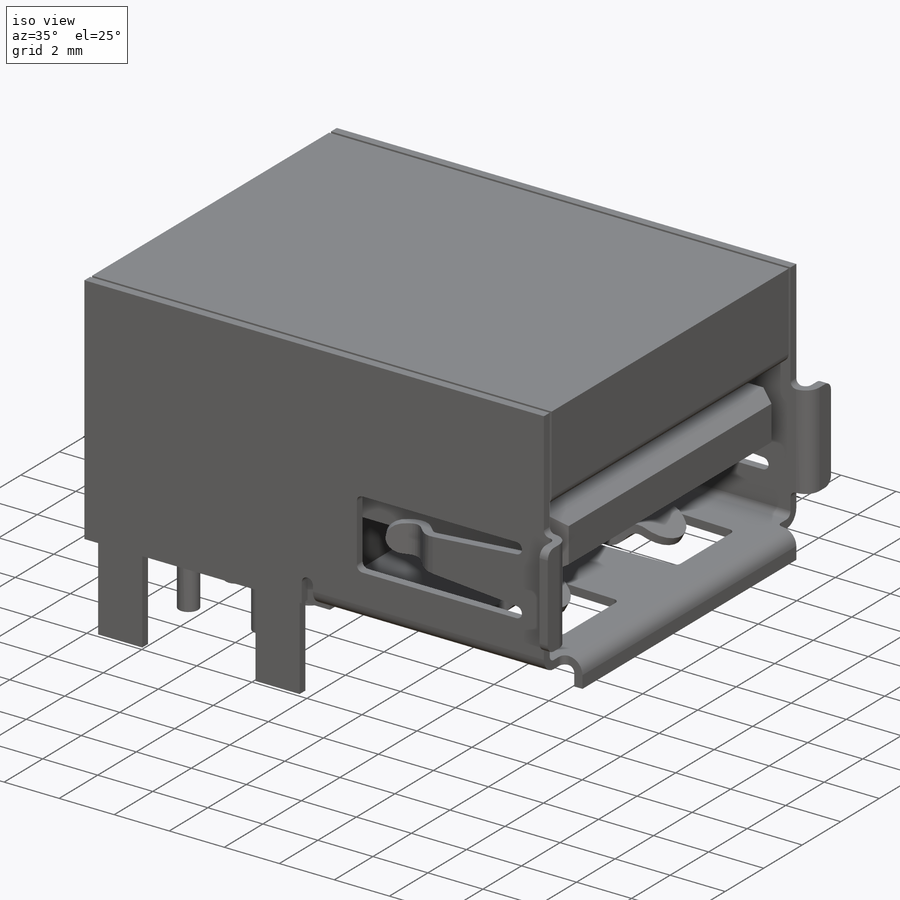
[diagram: iso view]
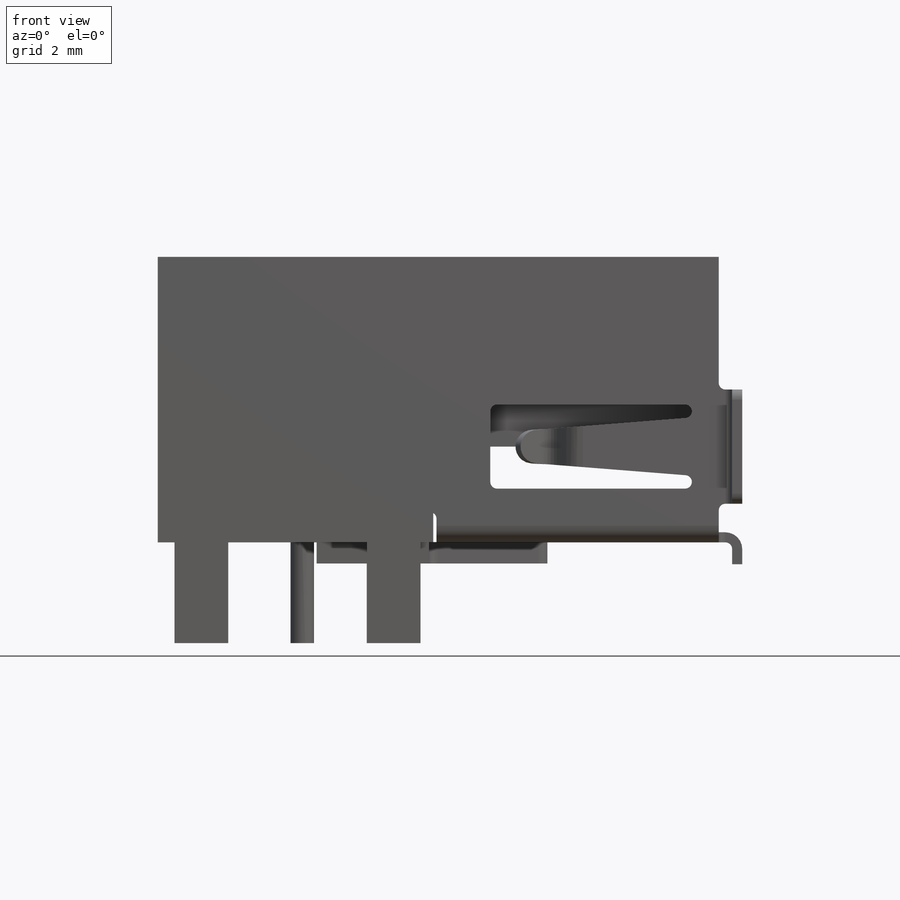
[diagram: front view]
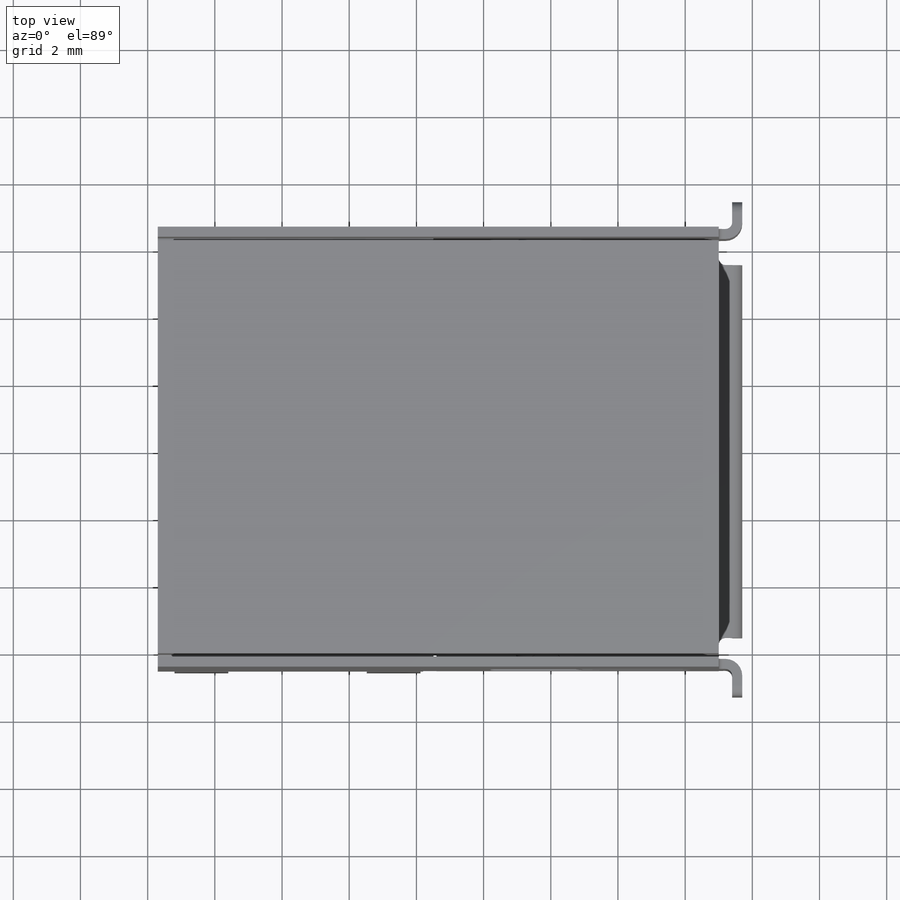
[diagram: top view]
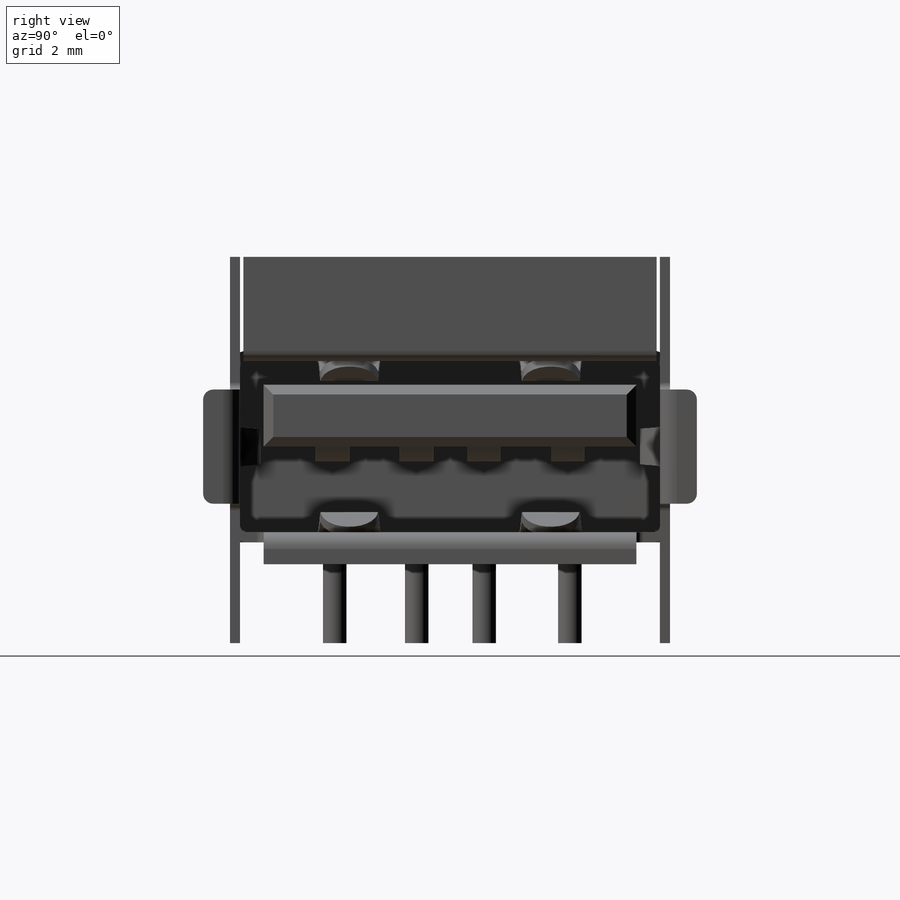
[diagram: right view]
SOLIDWORKS PART (.sldprt)
format: sldprt  version: not decoded by parser v0  size: 2,226,688 bytes
history: native  units: mm
features: sketch x27, extrude x11, cut_extrude x10, plane x5, fillet x5, mirror x4, material x1, shell x1, boolean_combine x1, chamfer x1, sweep x1, pattern_linear x1 + 5 further entries (+10 scaffold rows collapsed)
feature tree (83):
  scaffold x10  (default folders/planes/origin — collapsed)
  material  "Material <not specified>"
  plane  "Спереди"
  plane  "Сверху"
  plane  "Справа"
  sketch  "Эскиз1"  dims[D1=13.1mm D2=13.7mm]
  extrude  "Вытянуть1"  Depth=6.3mm
  plane  "Плоскость1"  Offset=3.2mm
  sketch  "Эскиз3"  dims[D5=0.8mm D6=0.5mm D1=10.5mm D2=7.9mm D3=9.5mm D4=6.8mm D7=0.3mm]
  "Поверхность-Вытянуть1"
  sketch  "Эскиз4"  dims[c1.D1=1.0mm c1.D5=0.15mm c1.D2=5.7mm c1.D3=4.6mm c1.D4=1.0mm c2.D5=0.3mm c2.D3=3.2mm]
  mirror  "Зеркальное отражение9"
  mirror  "Придать толщину2"
  cut_extrude  "Вырез-Вытянуть2"  [1 undecoded]
  sketch  "Эскиз4<2>"  dims[D1=20.0mm]
  sketch  "Эскиз8"  dims[D1=14.7mm D2=7.0mm]
  extrude  "Вытянуть2"  Depth=0.3mm
  fillet  "Скругление11"  Radius=0.5mm
  fillet  "Скругление13"  Radius=0.2mm
  shell  "Оболочка5"  Thickness=0.3mm
  sketch  "Эскиз19"  dims[D1=0.2mm D2=2.5mm D3=6.0mm D4=4.5mm]
  cut_extrude  "Вырез-Вытянуть8"  Depth=20mm
  sketch  "Эскиз20"  dims[c1.D6=0.2mm c1.D1=3.0mm c1.D2=~8.189557mm c2.D2=2.0deg c3.D2=~6.30917mm c4.D2=4.0deg c4.D3=1.5mm c4.D4=6.5mm c4.D5=3.0mm]
  cut_extrude  "Вырез-Вытянуть9"  [1 undecoded]
  sketch  "Эскиз21"  dims[c1.D2=1.7mm c1.D1=~5.50623mm c2.D1=12.0deg]
  sketch  "Эскиз24"  dims[c1.D2=~1.200263mm c1.D3=0.4mm c1.D4=0.7mm c1.D10=0.5mm c2.D2=11.7mm c3.D2=3.0deg c3.D5=12.5mm c3.D6=0.3mm c3.D7=~0.543551mm c4.D7=20.0deg c4.D8=~3.155494mm c5.D8=45.0deg c5.D9=3.5mm c5.D1=3.38mm c5.D2=0.4mm c6.D1=0.85mm c6.D5=0.2mm c7.D1=0.2mm c8.D1=10.0mm]
  extrude  "Поверхность-Отсечь2"  [1 undecoded]
  mirror  "Придать толщину3"
  plane  "Плоскость2"
  sketch  "Эскиз25"  dims[c1.D1=1.0mm c1.D2=6.1mm c1.D3=7.0mm c2.D3=~94.519785deg c3.D3=5.8mm]
  sketch  "Эскиз26"  dims[c1.D2=~1.200263mm c1.D3=0.4mm c1.D4=0.7mm c1.D10=0.5mm c1.D5=0.7mm c1.D6=0.4mm c1.D9=0.7mm c2.D2=11.7mm c3.D2=3.0deg c3.D5=12.5mm c3.D6=0.3mm c3.D7=~0.543551mm c4.D7=20.0deg c4.D8=~3.155494mm c5.D8=45.0deg c5.D9=3.5mm c5.D1=3.38mm c5.D2=0.5mm c6.D1=0.85mm c6.D5=0.3mm c6.D7=0.4mm c6.D9=~0.675736mm c7.D9=135.0deg c8.D9=~0.675736mm c9.D9=45.0deg c9.D10=5.8mm c9.D5=~0.729361mm c10.D5=45.0deg c10.D2=0.2mm c10.D1=0.2mm c11.D1=5.0mm]
  extrude  "Поверхность-Отсечь3"  [1 undecoded]
  mirror  "Придать толщину4"
  "Зеркальное отражение15"
  "Зеркальное отражение16"
  "Зеркальное отражение17"
  boolean_combine  "Соединить2"
  sketch  "Эскиз5"  dims[D2=4.6mm D1=0.0mm]
  cut_extrude  "Вырез-Вытянуть4"  Depth=1.5mm
  sketch  "Эскиз9"  dims[c1.D1=11.1mm c1.D2=1.8mm c2.D1=1.8mm c2.D2=1.8mm]
  cut_extrude  "Вырез-Вытянуть5"  Depth=0.7mm
  fillet  "Скругление9"  Radius=0.2mm
  sketch  "Эскиз10"  dims[D1=0.1mm]
  extrude  "Вытянуть3"  Depth=0.1mm
  sketch  "Эскиз11"  dims[c1.D1=1.0mm c1.D2=1.0mm c1.D3=3.5mm c1.D4=4.37mm c2.D1=3.45mm c2.D5=1.2mm c2.D6=1.2mm c2.D7=0.5mm c2.D8=11.1mm c2.D9=1.84mm]
  extrude  "Вытянуть4"  [1 undecoded]
  chamfer  "Фаска1"  Distance=0.5mm Angle=30deg
  sketch  "Эскиз12"  dims[D1=0.0mm]
  cut_extrude  "Вырез-Вытянуть6"  Depth=1.3mm
  sketch  "Эскиз13"
  cut_extrude  "Вырез-Вытянуть7"  Depth=1.4mm
  sketch  "Эскиз14"  dims[D1=12.5mm D2=1.0mm D3=0.3mm]
  sketch  "Эскиз16"  dims[c1.D2=~1.200263mm c1.D3=1.0mm c1.D4=1.0mm c1.D10=0.5mm c2.D2=11.7mm c3.D2=3.0deg c3.D5=12.5mm c3.D6=0.3mm c3.D7=~0.543551mm c4.D7=45.0deg c4.D8=~3.155494mm c5.D8=30.0deg c5.D9=3.5mm c5.D1=0.2mm]
  sweep  "По траектории1"
  pattern_linear  "Линейный массив2"  Count1=2 Count2=1 Spacing1=2.5mm Spacing2=50mm
  "Зеркальное отражение10"
  sketch  "Esboço1"
  cut_extrude  "Corte-extrusão1"  Depth=2mm
  sketch  "Esboço2"  dims[D1=0.0mm]
  cut_extrude  "Corte-extrusão2"  Depth=22mm
  sketch  "Esboço3"  dims[D1=0.5mm]
  extrude  "Ressalto-extrusão1"  Depth=3.7mm
  sketch  "Esboço4"
  cut_extrude  "Corte-extrusão3"  Depth=8.5mm
  sketch  "Esboço5"  dims[D1=2.8mm D2=2.8mm]
  extrude  "Ressalto-extrusão2"  [1 undecoded]
  fillet  "Filete1"  Radius=0.3mm
  fillet  "Filete2"  Radius=0.3mm
  sketch  "Esboço6"  dims[c1.D3=0.3mm c1.D1=4.73mm c1.D2=3.34mm c2.D3=1.2mm c2.D4=1.2mm c2.D5=6.87mm c2.D6=7.5mm c2.D7=3.75mm]
  extrude  "Ressalto-extrusão3"  Depth=0.63mm
  sketch  "Esboço7"
  extrude  "Ressalto-extrusão6"  Depth=0.2mm
  sketch  "Esboço8"  dims[c1.D9=~0.038179mm c1.D10=0.02mm c1.D12=0.7mm c1.D13=0.02mm c1.D14=0.02mm c1.D15=0.7mm c1.D16=0.7mm c1.D17=~0.609277mm c1.D18=~0.829551mm c1.D19=0.7mm c1.D20=0.7mm c1.D21=0.7mm c1.D22=0.7mm c1.D1=1.6mm c1.D2=1.6mm c1.D3=0.5mm c1.D4=0.5mm c1.D5=1.6mm c1.D6=1.6mm c1.D7=5.72mm c1.D8=5.72mm c2.D9=0.28mm c2.D11=0.8mm c2.D13=3.1mm c2.D14=0.3mm c2.D15=2.7mm c2.D16=2.44mm c2.D17=2.01mm c2.D18=2.55mm c2.D19=2.44mm c2.D20=2.01mm c2.D21=2.55mm c2.D22=3.1mm]
  extrude  "Ressalto-extrusão7"  Depth=3mm
decode coverage: 46 of 62 modeling features carry decoded parameters; 5 rows unclassified (native names shown)
note: ~ marks probable driven/reference dimensions
note: 6 parameter values undecoded
summary: no parameter record found for 6 features
note: suppression state not decoded; provenance and decode notes live in map.json
